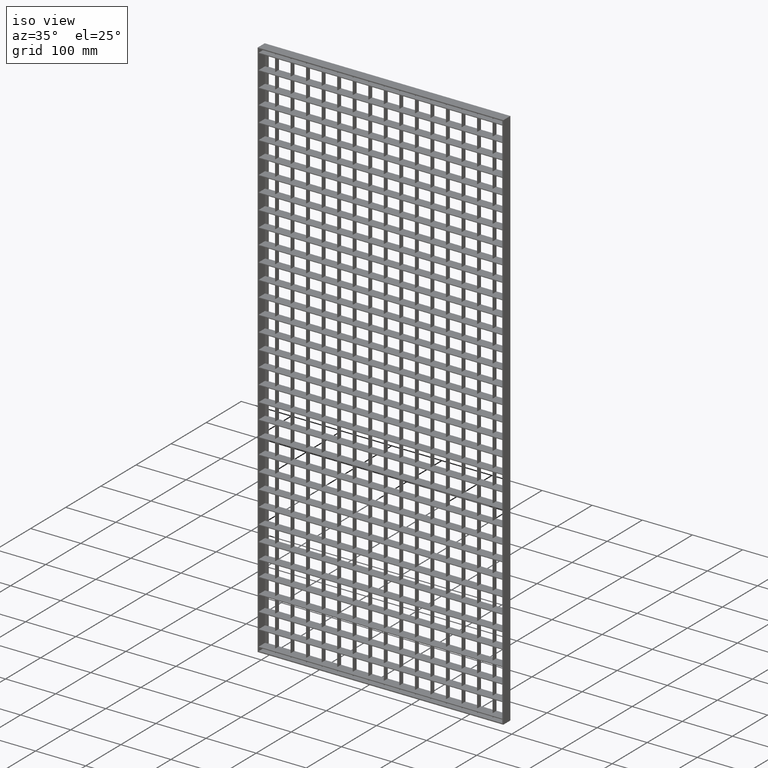
[diagram: clean part render]
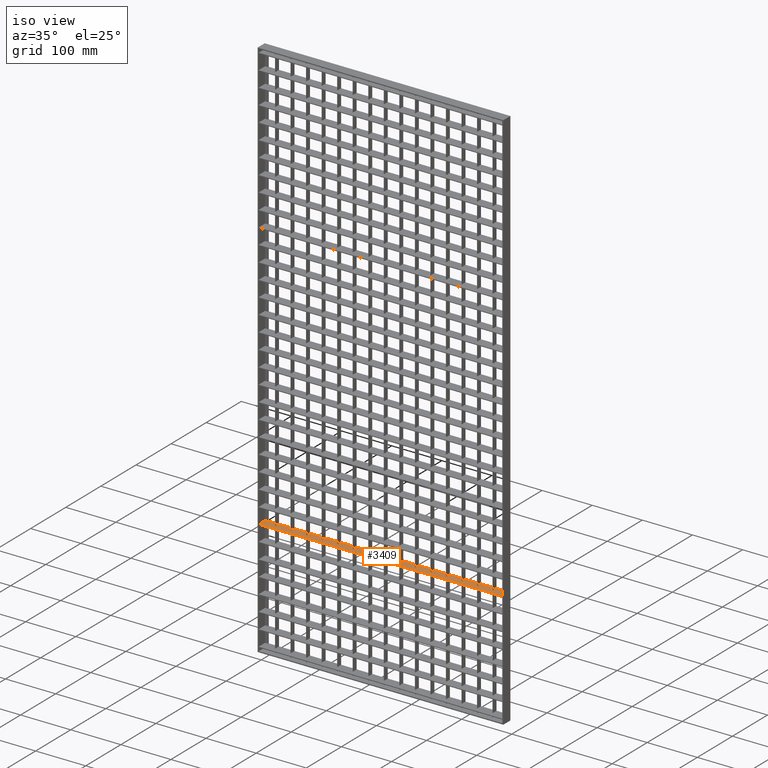
[diagram: same view with one face highlighted and labeled with its STEP entity id]
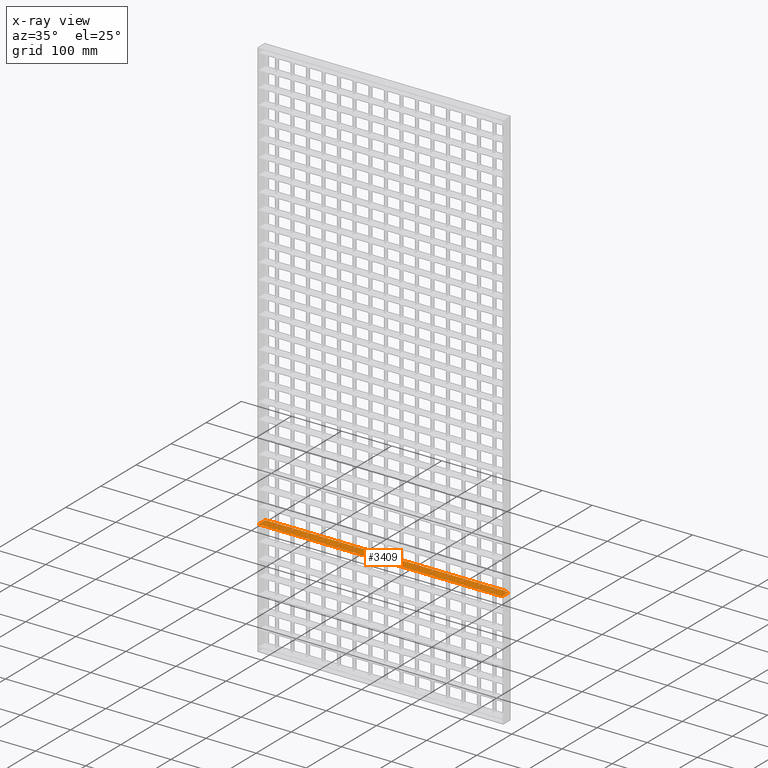
[diagram: x-ray of the same camera — body ghosted, the highlighted face saturated]
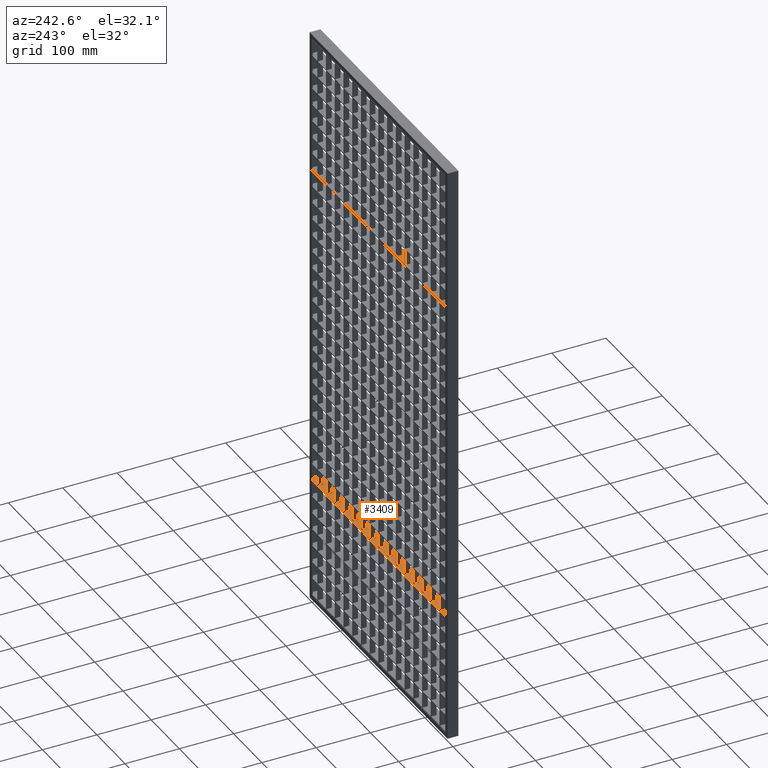
[diagram: same view with one face highlighted and labeled with its STEP entity id]
A machine part, iso view. The second image highlights one B-rep face of the part: STEP entity #3409.
The next image is the same camera in x-ray: the body ghosted, the highlighted face saturated — about 0% of this face is hidden behind the body in this view.
A second angle (auxiliary view) of the same face is appended — the face is thin or edge-on in the first view.
In plain terms, the highlighted planar face has unit normal (0, 0, -1).
Its self-contained STEP definition (entity closure, byte-faithful):
#53 = VERTEX_POINT ( 'NONE', #34075 ) ;
#95 = DIRECTION ( 'NONE',  ( 0.0000000000000000000, -1.000000000000000000, 0.0000000000000000000 ) ) ;
#165 = ORIENTED_EDGE ( 'NONE', *, *, #64502, .F. ) ;
#258 = VECTOR ( 'NONE', #60584, 1000.000000000000000 ) ;
#304 = CARTESIAN_POINT ( 'NONE',  ( 508.0561711201315800, 10.00000000000015500, -859.2500000000001100 ) ) ;
#658 = ORIENTED_EDGE ( 'NONE', *, *, #55660, .T. ) ;
#704 = VERTEX_POINT ( 'NONE', #54048 ) ;
#712 = ORIENTED_EDGE ( 'NONE', *, *, #35337, .T. ) ;
#1393 = EDGE_CURVE ( 'NONE', #50354, #68898, #55203, .T. ) ;
#1560 = LINE ( 'NONE', #74730, #47830 ) ;
#1565 = LINE ( 'NONE', #11392, #41068 ) ;
#1569 = ORIENTED_EDGE ( 'NONE', *, *, #33328, .F. ) ;
#1704 = VECTOR ( 'NONE', #13120, 1000.000000000000000 ) ;
#1992 = EDGE_CURVE ( 'NONE', #34790, #49113, #64695, .T. ) ;
#2011 = DIRECTION ( 'NONE',  ( -1.000000000000000000, -3.061616997868382600E-016, 0.0000000000000000000 ) ) ;
#2109 = DIRECTION ( 'NONE',  ( 0.0000000000000000000, 1.000000000000000000, 0.0000000000000000000 ) ) ;
#2141 = VERTEX_POINT ( 'NONE', #69376 ) ;
#2176 = ORIENTED_EDGE ( 'NONE', *, *, #46062, .T. ) ;
#2343 = ORIENTED_EDGE ( 'NONE', *, *, #62439, .T. ) ;
#2769 = LINE ( 'NONE', #54162, #62459 ) ;
#2953 = CARTESIAN_POINT ( 'NONE',  ( 508.0561711201315800, 10.00000000000015500, -859.2500000000001100 ) ) ;
#3409 = ADVANCED_FACE ( 'NONE', ( #34569 ), #61011, .F. ) ;
#3497 = DIRECTION ( 'NONE',  ( 0.0000000000000000000, 1.000000000000000000, 0.0000000000000000000 ) ) ;
#3759 = AXIS2_PLACEMENT_3D ( 'NONE', #36549, #29796, #72951 ) ;
#3761 = VECTOR ( 'NONE', #63153, 1000.000000000000000 ) ;
#4139 = CARTESIAN_POINT ( 'NONE',  ( 7.999999999999996400, 8.000000000000001800, -859.2500000000001100 ) ) ;
#4404 = LINE ( 'NONE', #53769, #18830 ) ;
#4461 = LINE ( 'NONE', #33083, #9219 ) ;
#4721 = LINE ( 'NONE', #12825, #30774 ) ;
#4946 = ORIENTED_EDGE ( 'NONE', *, *, #61403, .F. ) ;
#5110 = VERTEX_POINT ( 'NONE', #43535 ) ;
#5305 = ORIENTED_EDGE ( 'NONE', *, *, #22227, .T. ) ;
#5473 = VECTOR ( 'NONE', #56891, 1000.000000000000000 ) ;
#5560 = VECTOR ( 'NONE', #47603, 1000.000000000000000 ) ;
#5822 = EDGE_CURVE ( 'NONE', #68810, #65231, #60305, .T. ) ;
#6117 = VECTOR ( 'NONE', #20757, 1000.000000000000000 ) ;
#6132 = ORIENTED_EDGE ( 'NONE', *, *, #51162, .T. ) ;
#6389 = DIRECTION ( 'NONE',  ( -1.000000000000000000, -3.061616997868381200E-016, 0.0000000000000000000 ) ) ;
#6401 = CARTESIAN_POINT ( 'NONE',  ( 120.5000000000000000, 10.00000000000000400, -859.2500000000001100 ) ) ;
#6502 = ORIENTED_EDGE ( 'NONE', *, *, #49500, .F. ) ;
#6548 = CARTESIAN_POINT ( 'NONE',  ( 59.50000000000000000, 3.469446951953614200E-015, -859.2500000000001100 ) ) ;
#6588 = VERTEX_POINT ( 'NONE', #31672 ) ;
#6643 = EDGE_CURVE ( 'NONE', #17608, #15090, #19684, .T. ) ;
#7118 = LINE ( 'NONE', #23506, #28299 ) ;
#7778 = CARTESIAN_POINT ( 'NONE',  ( 183.5000000000000600, 10.00000000000005500, -859.2500000000001100 ) ) ;
#7893 = CARTESIAN_POINT ( 'NONE',  ( 508.0561711201315800, 10.00000000000015500, -859.2500000000001100 ) ) ;
#8051 = VERTEX_POINT ( 'NONE', #64328 ) ;
#8090 = VECTOR ( 'NONE', #74584, 1000.000000000000000 ) ;
#8153 = DIRECTION ( 'NONE',  ( -1.000000000000000000, -3.061616997868381200E-016, 0.0000000000000000000 ) ) ;
#8163 = ORIENTED_EDGE ( 'NONE', *, *, #6643, .F. ) ;
#8301 = EDGE_CURVE ( 'NONE', #20595, #77617, #22362, .T. ) ;
#8343 = CARTESIAN_POINT ( 'NONE',  ( 59.50000000000005000, 10.00000000000001800, -859.2500000000001100 ) ) ;
#8412 = ORIENTED_EDGE ( 'NONE', *, *, #60790, .F. ) ;
#8534 = CARTESIAN_POINT ( 'NONE',  ( 337.5000000000000000, 3.964497668408261800E-015, -859.2500000000001100 ) ) ;
#8674 = CARTESIAN_POINT ( 'NONE',  ( 151.4999999999999700, -9.999999999999847200, -859.2500000000001100 ) ) ;
#8775 = DIRECTION ( 'NONE',  ( -1.000000000000000000, -3.061616997868382600E-016, 0.0000000000000000000 ) ) ;
#8782 = EDGE_CURVE ( 'NONE', #71914, #73066, #14555, .T. ) ;
#8949 = CARTESIAN_POINT ( 'NONE',  ( 368.5000000000000600, -9.999999999999847200, -859.2500000000001100 ) ) ;
#9219 = VECTOR ( 'NONE', #15015, 1000.000000000000000 ) ;
#9446 = VECTOR ( 'NONE', #77853, 1000.000000000000000 ) ;
#9472 = VECTOR ( 'NONE', #52279, 1000.000000000000000 ) ;
#9516 = VERTEX_POINT ( 'NONE', #78986 ) ;
#9676 = VECTOR ( 'NONE', #16080, 1000.000000000000000 ) ;
#10096 = ORIENTED_EDGE ( 'NONE', *, *, #48770, .T. ) ;
#10531 = ORIENTED_EDGE ( 'NONE', *, *, #8782, .F. ) ;
#10723 = VERTEX_POINT ( 'NONE', #72383 ) ;
#10766 = EDGE_CURVE ( 'NONE', #68898, #34790, #4404, .T. ) ;
#10959 = LINE ( 'NONE', #55575, #74666 ) ;
#11232 = EDGE_CURVE ( 'NONE', #44311, #704, #12020, .T. ) ;
#11277 = LINE ( 'NONE', #44242, #5473 ) ;
#11392 = CARTESIAN_POINT ( 'NONE',  ( 508.0561711201315800, 10.00000000000015500, -859.2500000000001100 ) ) ;
#11398 = LINE ( 'NONE', #33825, #42257 ) ;
#11879 = EDGE_CURVE ( 'NONE', #69246, #39146, #79372, .T. ) ;
#12020 = LINE ( 'NONE', #4139, #75696 ) ;
#12072 = LINE ( 'NONE', #43856, #30395 ) ;
#12230 = DIRECTION ( 'NONE',  ( -1.000000000000000000, -3.061616997868381200E-016, 0.0000000000000000000 ) ) ;
#12310 = CARTESIAN_POINT ( 'NONE',  ( 121.5000000000000000, 10.00000000000003700, -859.2500000000001100 ) ) ;
#12825 = CARTESIAN_POINT ( 'NONE',  ( 508.0561711201315800, 10.00000000000015500, -859.2500000000001100 ) ) ;
#12920 = CARTESIAN_POINT ( 'NONE',  ( 182.5000000000000000, -9.999999999999847200, -859.2500000000001100 ) ) ;
#13025 = EDGE_CURVE ( 'NONE', #76024, #21222, #30893, .T. ) ;
#13060 = CARTESIAN_POINT ( 'NONE',  ( 244.5000000000000000, 10.00000000000000400, -859.2500000000001100 ) ) ;
#13120 = DIRECTION ( 'NONE',  ( -1.000000000000000000, -3.061616997868382600E-016, 0.0000000000000000000 ) ) ;
#13179 = DIRECTION ( 'NONE',  ( 0.0000000000000000000, 1.000000000000000000, 0.0000000000000000000 ) ) ;
#13334 = DIRECTION ( 'NONE',  ( -1.000000000000000000, -3.061616997868381200E-016, 0.0000000000000000000 ) ) ;
#13363 = ORIENTED_EDGE ( 'NONE', *, *, #53779, .T. ) ;
#13383 = CARTESIAN_POINT ( 'NONE',  ( 89.50000000000002800, -9.999999999999847200, -859.2500000000001100 ) ) ;
#13512 = DIRECTION ( 'NONE',  ( 0.0000000000000000000, 1.000000000000000000, 0.0000000000000000000 ) ) ;
#13646 = CARTESIAN_POINT ( 'NONE',  ( 508.0561711201315800, 10.00000000000015500, -859.2500000000001100 ) ) ;
#13694 = DIRECTION ( 'NONE',  ( 0.0000000000000000000, -1.000000000000000000, 0.0000000000000000000 ) ) ;
#14032 = CARTESIAN_POINT ( 'NONE',  ( 89.49999999999997200, 3.693115367827176900E-015, -859.2500000000001100 ) ) ;
#14204 = VECTOR ( 'NONE', #69715, 1000.000000000000000 ) ;
#14314 = CARTESIAN_POINT ( 'NONE',  ( 2.000000000000003600, -10.00000000000000000, -859.2500000000001100 ) ) ;
#14436 = CARTESIAN_POINT ( 'NONE',  ( 462.5000000000000000, 10.00000000000014000, -859.2500000000001100 ) ) ;
#14555 = LINE ( 'NONE', #29733, #47323 ) ;
#14843 = VERTEX_POINT ( 'NONE', #58090 ) ;
#14961 = CARTESIAN_POINT ( 'NONE',  ( 482.0000000000002800, 10.00000000000000200, -859.2500000000001100 ) ) ;
#15015 = DIRECTION ( 'NONE',  ( -1.000000000000000000, -3.061616997868382600E-016, 0.0000000000000000000 ) ) ;
#15090 = VERTEX_POINT ( 'NONE', #47816 ) ;
#15233 = LINE ( 'NONE', #50476, #3761 ) ;
#15250 = ORIENTED_EDGE ( 'NONE', *, *, #44752, .T. ) ;
#15295 = ORIENTED_EDGE ( 'NONE', *, *, #67445, .T. ) ;
#15549 = CARTESIAN_POINT ( 'NONE',  ( 245.5000000000000000, 3.469446951953614200E-015, -859.2500000000001100 ) ) ;
#15619 = EDGE_CURVE ( 'NONE', #21222, #25519, #49666, .T. ) ;
#16080 = DIRECTION ( 'NONE',  ( -1.000000000000000000, -3.061616997868382600E-016, 0.0000000000000000000 ) ) ;
#16192 = CARTESIAN_POINT ( 'NONE',  ( 461.5000000000000000, 10.00000000000014000, -859.2500000000001100 ) ) ;
#16209 = EDGE_CURVE ( 'NONE', #59852, #68161, #39883, .T. ) ;
#16625 = LINE ( 'NONE', #36654, #258 ) ;
#16655 = CARTESIAN_POINT ( 'NONE',  ( 152.5000000000000300, 10.00000000000004600, -859.2500000000001100 ) ) ;
#16892 = DIRECTION ( 'NONE',  ( -1.000000000000000000, -3.061616997868381200E-016, 0.0000000000000000000 ) ) ;
#16953 = VECTOR ( 'NONE', #63803, 1000.000000000000000 ) ;
#16977 = VERTEX_POINT ( 'NONE', #52047 ) ;
#17174 = ORIENTED_EDGE ( 'NONE', *, *, #62572, .F. ) ;
#17485 = EDGE_CURVE ( 'NONE', #54440, #73592, #66610, .T. ) ;
#17608 = VERTEX_POINT ( 'NONE', #8534 ) ;
#17741 = EDGE_CURVE ( 'NONE', #6588, #21600, #25087, .T. ) ;
#17881 = ORIENTED_EDGE ( 'NONE', *, *, #51138, .T. ) ;
#17952 = CARTESIAN_POINT ( 'NONE',  ( 183.5000000000000000, -9.999999999999847200, -859.2500000000001100 ) ) ;
#18058 = LINE ( 'NONE', #13646, #1704 ) ;
#18277 = VECTOR ( 'NONE', #27236, 1000.000000000000000 ) ;
#18744 = CARTESIAN_POINT ( 'NONE',  ( 508.0561711201315800, -5.898059818321144100E-014, -859.2500000000001100 ) ) ;
#18790 = DIRECTION ( 'NONE',  ( -1.000000000000000000, -3.061616997868382600E-016, 0.0000000000000000000 ) ) ;
#18830 = VECTOR ( 'NONE', #72653, 1000.000000000000000 ) ;
#19270 = LINE ( 'NONE', #79162, #37647 ) ;
#19423 = LINE ( 'NONE', #304, #66693 ) ;
#19532 = DIRECTION ( 'NONE',  ( 0.0000000000000000000, 1.000000000000000000, 0.0000000000000000000 ) ) ;
#19684 = LINE ( 'NONE', #38940, #34195 ) ;
#19979 = ORIENTED_EDGE ( 'NONE', *, *, #64501, .F. ) ;
#20222 = ORIENTED_EDGE ( 'NONE', *, *, #76240, .T. ) ;
#20272 = CARTESIAN_POINT ( 'NONE',  ( 7.999999999999996400, 8.000000000000001800, -859.2500000000001100 ) ) ;
#20403 = CARTESIAN_POINT ( 'NONE',  ( 399.4999999999999400, 10.00000000000012100, -859.2500000000001100 ) ) ;
#20595 = VERTEX_POINT ( 'NONE', #7778 ) ;
#20660 = DIRECTION ( 'NONE',  ( 0.0000000000000000000, -1.000000000000000000, 0.0000000000000000000 ) ) ;
#20726 = VERTEX_POINT ( 'NONE', #58909 ) ;
#20731 = VECTOR ( 'NONE', #19532, 1000.000000000000000 ) ;
#20757 = DIRECTION ( 'NONE',  ( 0.0000000000000000000, 1.000000000000000000, 0.0000000000000000000 ) ) ;
#20795 = EDGE_CURVE ( 'NONE', #5110, #65203, #49680, .T. ) ;
#20826 = EDGE_LOOP ( 'NONE', ( #34952, #36929, #4946, #26963, #8412, #1569, #30200, #17881, #26873, #59739, #35435, #33405, #21493, #39261, #44643, #5305, #50850, #8163, #64251, #57111, #44116, #73508, #17174, #55319, #10531, #19979, #25063, #60534, #56202, #62663, #79000, #658, #15295, #20222, #54316, #77812, #55251, #64181, #54309, #6132, #2343, #712, #2176, #68616, #54297, #71567, #24852, #66438, #42676, #75386, #46228, #39455, #47979, #23309, #13363, #15250, #47350, #61697, #21560, #41652, #60448, #64488, #165, #53572, #10096, #54113, #6502, #32204 ) ) ;
#21023 = CARTESIAN_POINT ( 'NONE',  ( 2.000000000000003600, 8.000000000000001800, -859.2500000000001100 ) ) ;
#21120 = LINE ( 'NONE', #31649, #63527 ) ;
#21166 = VERTEX_POINT ( 'NONE', #13060 ) ;
#21204 = DIRECTION ( 'NONE',  ( -1.000000000000000000, -3.061616997868382600E-016, 0.0000000000000000000 ) ) ;
#21222 = VERTEX_POINT ( 'NONE', #65236 ) ;
#21369 = LINE ( 'NONE', #78504, #77270 ) ;
#21475 = LINE ( 'NONE', #14314, #6117 ) ;
#21493 = ORIENTED_EDGE ( 'NONE', *, *, #38061, .F. ) ;
#21498 = CARTESIAN_POINT ( 'NONE',  ( 369.5000000000000600, 2.521952918628904300E-015, -859.2500000000001100 ) ) ;
#21555 = VERTEX_POINT ( 'NONE', #53106 ) ;
#21560 = ORIENTED_EDGE ( 'NONE', *, *, #77550, .T. ) ;
#21600 = VERTEX_POINT ( 'NONE', #40730 ) ;
#21877 = CARTESIAN_POINT ( 'NONE',  ( 2.000000000000003600, 8.000000000000001800, -859.2500000000001100 ) ) ;
#22180 = VERTEX_POINT ( 'NONE', #54244 ) ;
#22227 = EDGE_CURVE ( 'NONE', #31029, #28390, #1565, .T. ) ;
#22362 = LINE ( 'NONE', #17952, #32031 ) ;
#22488 = CARTESIAN_POINT ( 'NONE',  ( 27.49999999999996800, -9.999999999999847200, -859.2500000000001100 ) ) ;
#22536 = CARTESIAN_POINT ( 'NONE',  ( 508.0561711201315800, -2.949029909160572100E-014, -859.2500000000001100 ) ) ;
#22767 = DIRECTION ( 'NONE',  ( 1.000000000000000000, 0.0000000000000000000, 0.0000000000000000000 ) ) ;
#22771 = LINE ( 'NONE', #49147, #44031 ) ;
#22850 = VERTEX_POINT ( 'NONE', #29925 ) ;
#22903 = EDGE_CURVE ( 'NONE', #49943, #8051, #41823, .T. ) ;
#22989 = LINE ( 'NONE', #70069, #9472 ) ;
#23309 = ORIENTED_EDGE ( 'NONE', *, *, #64981, .T. ) ;
#23506 = CARTESIAN_POINT ( 'NONE',  ( 245.5000000000000000, -9.999999999999847200, -859.2500000000001100 ) ) ;
#23794 = DIRECTION ( 'NONE',  ( 0.0000000000000000000, 1.000000000000000000, 0.0000000000000000000 ) ) ;
#23880 = CARTESIAN_POINT ( 'NONE',  ( 275.4999999999999400, 10.00000000000008300, -859.2500000000001100 ) ) ;
#24458 = LINE ( 'NONE', #18744, #8090 ) ;
#24852 = ORIENTED_EDGE ( 'NONE', *, *, #49271, .T. ) ;
#25063 = ORIENTED_EDGE ( 'NONE', *, *, #17485, .F. ) ;
#25087 = LINE ( 'NONE', #65909, #75249 ) ;
#25519 = VERTEX_POINT ( 'NONE', #40138 ) ;
#25692 = DIRECTION ( 'NONE',  ( 0.0000000000000000000, 1.000000000000000000, 0.0000000000000000000 ) ) ;
#25770 = DIRECTION ( 'NONE',  ( -1.000000000000000000, -3.061616997868382600E-016, 0.0000000000000000000 ) ) ;
#25779 = VERTEX_POINT ( 'NONE', #30378 ) ;
#25828 = VERTEX_POINT ( 'NONE', #68639 ) ;
#25907 = CARTESIAN_POINT ( 'NONE',  ( 400.4999999999999400, 10.00000000000012100, -859.2500000000001100 ) ) ;
#26063 = CARTESIAN_POINT ( 'NONE',  ( 400.4999999999999400, 3.439281081097793000E-015, -859.2500000000001100 ) ) ;
#26076 = CARTESIAN_POINT ( 'NONE',  ( 213.5000000000000000, 10.00000000000000400, -859.2500000000001100 ) ) ;
#26439 = DIRECTION ( 'NONE',  ( 0.0000000000000000000, 1.000000000000000000, 0.0000000000000000000 ) ) ;
#26794 = EDGE_CURVE ( 'NONE', #14843, #68810, #28674, .T. ) ;
#26873 = ORIENTED_EDGE ( 'NONE', *, *, #58345, .F. ) ;
#26963 = ORIENTED_EDGE ( 'NONE', *, *, #33423, .T. ) ;
#27035 = EDGE_CURVE ( 'NONE', #77617, #49943, #65047, .T. ) ;
#27236 = DIRECTION ( 'NONE',  ( 0.0000000000000000000, -1.000000000000000000, 0.0000000000000000000 ) ) ;
#27552 = VERTEX_POINT ( 'NONE', #36893 ) ;
#27672 = CARTESIAN_POINT ( 'NONE',  ( 337.5000000000000000, -9.999999999999847200, -859.2500000000001100 ) ) ;
#27740 = VECTOR ( 'NONE', #66131, 1000.000000000000000 ) ;
#27998 = CARTESIAN_POINT ( 'NONE',  ( 28.49999999999997200, 3.469446951953614200E-015, -859.2500000000001100 ) ) ;
#28299 = VECTOR ( 'NONE', #59887, 1000.000000000000000 ) ;
#28390 = VERTEX_POINT ( 'NONE', #38625 ) ;
#28484 = LINE ( 'NONE', #74595, #20731 ) ;
#28490 = CARTESIAN_POINT ( 'NONE',  ( 508.0561711201315800, -1.040834085586084300E-014, -859.2500000000001100 ) ) ;
#28674 = LINE ( 'NONE', #34711, #5560 ) ;
#28734 = EDGE_CURVE ( 'NONE', #50375, #44311, #69888, .T. ) ;
#29733 = CARTESIAN_POINT ( 'NONE',  ( 276.4999999999999400, -9.999999999999847200, -859.2500000000001100 ) ) ;
#29796 = DIRECTION ( 'NONE',  ( 0.0000000000000000000, 0.0000000000000000000, -1.000000000000000000 ) ) ;
#29925 = CARTESIAN_POINT ( 'NONE',  ( 369.5000000000000600, 10.00000000000011400, -859.2500000000001100 ) ) ;
#30011 = VERTEX_POINT ( 'NONE', #60214 ) ;
#30195 = VECTOR ( 'NONE', #31576, 1000.000000000000000 ) ;
#30200 = ORIENTED_EDGE ( 'NONE', *, *, #35688, .F. ) ;
#30378 = CARTESIAN_POINT ( 'NONE',  ( 151.4999999999999700, 3.593182518866256300E-015, -859.2500000000001100 ) ) ;
#30395 = VECTOR ( 'NONE', #18790, 1000.000000000000000 ) ;
#30774 = VECTOR ( 'NONE', #69433, 1000.000000000000000 ) ;
#30836 = CARTESIAN_POINT ( 'NONE',  ( 306.5000000000000000, 3.964497668408261800E-015, -859.2500000000001100 ) ) ;
#30893 = LINE ( 'NONE', #71357, #9676 ) ;
#30986 = LINE ( 'NONE', #27672, #62808 ) ;
#31029 = VERTEX_POINT ( 'NONE', #56472 ) ;
#31576 = DIRECTION ( 'NONE',  ( 0.0000000000000000000, -1.000000000000000000, 0.0000000000000000000 ) ) ;
#31649 = CARTESIAN_POINT ( 'NONE',  ( 488.0000000000000000, -9.999999999999847200, -859.2500000000001100 ) ) ;
#31672 = CARTESIAN_POINT ( 'NONE',  ( 482.0000000000000600, 8.000000000000001800, -859.2500000000001100 ) ) ;
#31681 = EDGE_CURVE ( 'NONE', #10723, #71137, #77447, .T. ) ;
#31819 = DIRECTION ( 'NONE',  ( 0.0000000000000000000, -1.000000000000000000, 0.0000000000000000000 ) ) ;
#32031 = VECTOR ( 'NONE', #79434, 1000.000000000000000 ) ;
#32190 = VERTEX_POINT ( 'NONE', #63594 ) ;
#32204 = ORIENTED_EDGE ( 'NONE', *, *, #66988, .T. ) ;
#32209 = CARTESIAN_POINT ( 'NONE',  ( 276.4999999999999400, 10.00000000000008300, -859.2500000000001100 ) ) ;
#32262 = CARTESIAN_POINT ( 'NONE',  ( 275.4999999999999400, -9.999999999999847200, -859.2500000000001100 ) ) ;
#32355 = LINE ( 'NONE', #58948, #79608 ) ;
#32509 = CARTESIAN_POINT ( 'NONE',  ( 214.5000000000000300, -9.999999999999847200, -859.2500000000001100 ) ) ;
#32533 = VERTEX_POINT ( 'NONE', #16655 ) ;
#32872 = CARTESIAN_POINT ( 'NONE',  ( 431.5000000000000000, 2.621885767589837500E-015, -859.2500000000001100 ) ) ;
#33021 = DIRECTION ( 'NONE',  ( 0.0000000000000000000, 1.000000000000000000, 0.0000000000000000000 ) ) ;
#33022 = VECTOR ( 'NONE', #2011, 1000.000000000000000 ) ;
#33040 = VECTOR ( 'NONE', #48603, 1000.000000000000000 ) ;
#33083 = CARTESIAN_POINT ( 'NONE',  ( 508.0561711201315800, 10.00000000000015500, -859.2500000000001100 ) ) ;
#33328 = EDGE_CURVE ( 'NONE', #48663, #39373, #41363, .T. ) ;
#33338 = VECTOR ( 'NONE', #6389, 1000.000000000000000 ) ;
#33361 = LINE ( 'NONE', #2953, #16953 ) ;
#33405 = ORIENTED_EDGE ( 'NONE', *, *, #68655, .T. ) ;
#33413 = DIRECTION ( 'NONE',  ( -1.000000000000000000, -3.061616997868382600E-016, 0.0000000000000000000 ) ) ;
#33423 = EDGE_CURVE ( 'NONE', #56559, #62823, #4721, .T. ) ;
#33825 = CARTESIAN_POINT ( 'NONE',  ( 369.5000000000000600, -9.999999999999847200, -859.2500000000001100 ) ) ;
#33952 = LINE ( 'NONE', #75862, #33022 ) ;
#34051 = EDGE_CURVE ( 'NONE', #69285, #5110, #15233, .T. ) ;
#34075 = CARTESIAN_POINT ( 'NONE',  ( 120.5000000000000000, 2.775787205358319000E-015, -859.2500000000001100 ) ) ;
#34117 = VERTEX_POINT ( 'NONE', #64199 ) ;
#34195 = VECTOR ( 'NONE', #56965, 1000.000000000000000 ) ;
#34561 = LINE ( 'NONE', #7893, #66418 ) ;
#34569 = FACE_OUTER_BOUND ( 'NONE', #20826, .T. ) ;
#34711 = CARTESIAN_POINT ( 'NONE',  ( 28.49999999999997200, -9.999999999999847200, -859.2500000000001100 ) ) ;
#34790 = VERTEX_POINT ( 'NONE', #8343 ) ;
#34903 = CARTESIAN_POINT ( 'NONE',  ( 183.5000000000000000, 3.469446951953614200E-015, -859.2500000000001100 ) ) ;
#34952 = ORIENTED_EDGE ( 'NONE', *, *, #45359, .F. ) ;
#35337 = EDGE_CURVE ( 'NONE', #16977, #25779, #65210, .T. ) ;
#35435 = ORIENTED_EDGE ( 'NONE', *, *, #34051, .F. ) ;
#35522 = VECTOR ( 'NONE', #13512, 1000.000000000000000 ) ;
#35688 = EDGE_CURVE ( 'NONE', #20726, #48663, #51929, .T. ) ;
#35697 = DIRECTION ( 'NONE',  ( 0.0000000000000000000, 1.000000000000000000, 0.0000000000000000000 ) ) ;
#36002 = LINE ( 'NONE', #43449, #30195 ) ;
#36162 = DIRECTION ( 'NONE',  ( 0.0000000000000000000, 1.000000000000000000, 0.0000000000000000000 ) ) ;
#36273 = LINE ( 'NONE', #70364, #71009 ) ;
#36549 = CARTESIAN_POINT ( 'NONE',  ( 508.0561711201315800, -9.999999999999847200, -859.2500000000001100 ) ) ;
#36654 = CARTESIAN_POINT ( 'NONE',  ( 508.0561711201315800, 1.405126015541213700E-013, -859.2500000000001100 ) ) ;
#36893 = CARTESIAN_POINT ( 'NONE',  ( 151.5000000000000000, 10.00000000000000400, -859.2500000000001100 ) ) ;
#36929 = ORIENTED_EDGE ( 'NONE', *, *, #50090, .F. ) ;
#37082 = VECTOR ( 'NONE', #58868, 1000.000000000000000 ) ;
#37647 = VECTOR ( 'NONE', #60769, 1000.000000000000000 ) ;
#37950 = VERTEX_POINT ( 'NONE', #14961 ) ;
#38061 = EDGE_CURVE ( 'NONE', #71137, #22850, #11398, .T. ) ;
#38094 = CARTESIAN_POINT ( 'NONE',  ( 307.5000000000000000, 2.422020069668008500E-015, -859.2500000000001100 ) ) ;
#38554 = LINE ( 'NONE', #8949, #18277 ) ;
#38585 = DIRECTION ( 'NONE',  ( 1.000000000000000000, -3.061616997868381200E-016, 0.0000000000000000000 ) ) ;
#38625 = CARTESIAN_POINT ( 'NONE',  ( 338.5000000000000000, 10.00000000000010300, -859.2500000000001100 ) ) ;
#38840 = VECTOR ( 'NONE', #25692, 1000.000000000000000 ) ;
#38940 = CARTESIAN_POINT ( 'NONE',  ( 508.0561711201315800, -4.857225732735059900E-014, -859.2500000000001100 ) ) ;
#39044 = VECTOR ( 'NONE', #16892, 1000.000000000000000 ) ;
#39146 = VERTEX_POINT ( 'NONE', #26076 ) ;
#39160 = DIRECTION ( 'NONE',  ( 1.000000000000000000, -3.061616997868381200E-016, 0.0000000000000000000 ) ) ;
#39261 = ORIENTED_EDGE ( 'NONE', *, *, #31681, .F. ) ;
#39373 = VERTEX_POINT ( 'NONE', #32872 ) ;
#39396 = LINE ( 'NONE', #69336, #35522 ) ;
#39442 = CARTESIAN_POINT ( 'NONE',  ( 462.5000000000000000, 3.539213930058689100E-015, -859.2500000000001100 ) ) ;
#39444 = CARTESIAN_POINT ( 'NONE',  ( 508.0561711201315800, -3.989863994746656300E-014, -859.2500000000001100 ) ) ;
#39455 = ORIENTED_EDGE ( 'NONE', *, *, #10766, .T. ) ;
#39883 = LINE ( 'NONE', #74826, #38840 ) ;
#39993 = CARTESIAN_POINT ( 'NONE',  ( 307.5000000000000000, 10.00000000000009400, -859.2500000000001100 ) ) ;
#40042 = DIRECTION ( 'NONE',  ( 0.0000000000000000000, 1.000000000000000000, 0.0000000000000000000 ) ) ;
#40097 = EDGE_CURVE ( 'NONE', #9516, #34117, #61138, .T. ) ;
#40138 = CARTESIAN_POINT ( 'NONE',  ( 90.50000000000002800, 3.469446951953614200E-015, -859.2500000000001100 ) ) ;
#40464 = CARTESIAN_POINT ( 'NONE',  ( 461.5000000000000000, 3.964497668408261800E-015, -859.2500000000001100 ) ) ;
#40730 = CARTESIAN_POINT ( 'NONE',  ( 487.9999999999997700, 8.000000000000001800, -859.2500000000001100 ) ) ;
#41068 = VECTOR ( 'NONE', #67448, 1000.000000000000000 ) ;
#41363 = LINE ( 'NONE', #67038, #46127 ) ;
#41428 = CARTESIAN_POINT ( 'NONE',  ( 508.0561711201315800, 1.318389841742373400E-013, -859.2500000000001100 ) ) ;
#41652 = ORIENTED_EDGE ( 'NONE', *, *, #65817, .T. ) ;
#41823 = LINE ( 'NONE', #12920, #49580 ) ;
#42117 = CARTESIAN_POINT ( 'NONE',  ( 244.5000000000000000, -9.999999999999847200, -859.2500000000001100 ) ) ;
#42246 = LINE ( 'NONE', #28490, #9446 ) ;
#42257 = VECTOR ( 'NONE', #40042, 1000.000000000000000 ) ;
#42413 = CARTESIAN_POINT ( 'NONE',  ( 213.5000000000000300, -9.999999999999847200, -859.2500000000001100 ) ) ;
#42676 = ORIENTED_EDGE ( 'NONE', *, *, #15619, .T. ) ;
#43020 = VECTOR ( 'NONE', #63773, 1000.000000000000000 ) ;
#43449 = CARTESIAN_POINT ( 'NONE',  ( 306.5000000000000000, -9.999999999999847200, -859.2500000000001100 ) ) ;
#43535 = CARTESIAN_POINT ( 'NONE',  ( 399.4999999999999400, 3.964497668408261800E-015, -859.2500000000001100 ) ) ;
#43808 = VERTEX_POINT ( 'NONE', #15549 ) ;
#43843 = LINE ( 'NONE', #22488, #74747 ) ;
#43856 = CARTESIAN_POINT ( 'NONE',  ( 508.0561711201315800, 10.00000000000015500, -859.2500000000001100 ) ) ;
#43999 = DIRECTION ( 'NONE',  ( 0.0000000000000000000, -1.000000000000000000, 0.0000000000000000000 ) ) ;
#44031 = VECTOR ( 'NONE', #12230, 1000.000000000000000 ) ;
#44116 = ORIENTED_EDGE ( 'NONE', *, *, #16209, .F. ) ;
#44242 = CARTESIAN_POINT ( 'NONE',  ( 431.5000000000000000, -9.999999999999847200, -859.2500000000001100 ) ) ;
#44281 = VERTEX_POINT ( 'NONE', #56171 ) ;
#44311 = VERTEX_POINT ( 'NONE', #20272 ) ;
#44332 = CARTESIAN_POINT ( 'NONE',  ( 462.5000000000000000, -9.999999999999847200, -859.2500000000001100 ) ) ;
#44643 = ORIENTED_EDGE ( 'NONE', *, *, #56449, .F. ) ;
#44666 = EDGE_CURVE ( 'NONE', #44281, #73066, #18058, .T. ) ;
#44752 = EDGE_CURVE ( 'NONE', #46147, #14843, #78870, .T. ) ;
#44895 = LINE ( 'NONE', #44332, #69052 ) ;
#45038 = CARTESIAN_POINT ( 'NONE',  ( 508.0561711201315800, 1.509209424099822200E-013, -859.2500000000001100 ) ) ;
#45359 = EDGE_CURVE ( 'NONE', #51969, #74204, #44895, .T. ) ;
#45813 = LINE ( 'NONE', #75731, #55502 ) ;
#46044 = VECTOR ( 'NONE', #25770, 1000.000000000000000 ) ;
#46062 = EDGE_CURVE ( 'NONE', #25779, #27552, #50603, .T. ) ;
#46127 = VECTOR ( 'NONE', #49225, 1000.000000000000000 ) ;
#46147 = VERTEX_POINT ( 'NONE', #76618 ) ;
#46228 = ORIENTED_EDGE ( 'NONE', *, *, #1393, .T. ) ;
#46263 = LINE ( 'NONE', #69439, #56862 ) ;
#46292 = VERTEX_POINT ( 'NONE', #40464 ) ;
#46462 = CARTESIAN_POINT ( 'NONE',  ( 508.0561711201315800, -9.999999999999847200, -859.2500000000001100 ) ) ;
#46512 = VECTOR ( 'NONE', #2109, 1000.000000000000000 ) ;
#46799 = DIRECTION ( 'NONE',  ( 0.0000000000000000000, -1.000000000000000000, 0.0000000000000000000 ) ) ;
#47323 = VECTOR ( 'NONE', #23794, 1000.000000000000000 ) ;
#47350 = ORIENTED_EDGE ( 'NONE', *, *, #26794, .T. ) ;
#47536 = VECTOR ( 'NONE', #38585, 1000.000000000000000 ) ;
#47603 = DIRECTION ( 'NONE',  ( 0.0000000000000000000, -1.000000000000000000, 0.0000000000000000000 ) ) ;
#47816 = CARTESIAN_POINT ( 'NONE',  ( 338.5000000000000000, 3.339348232136859800E-015, -859.2500000000001100 ) ) ;
#47830 = VECTOR ( 'NONE', #31819, 1000.000000000000000 ) ;
#47979 = ORIENTED_EDGE ( 'NONE', *, *, #1992, .T. ) ;
#48166 = EDGE_CURVE ( 'NONE', #2141, #53, #19270, .T. ) ;
#48603 = DIRECTION ( 'NONE',  ( 0.0000000000000000000, 1.000000000000000000, 0.0000000000000000000 ) ) ;
#48663 = VERTEX_POINT ( 'NONE', #51321 ) ;
#48770 = EDGE_CURVE ( 'NONE', #9516, #21600, #21120, .T. ) ;
#49113 = VERTEX_POINT ( 'NONE', #6548 ) ;
#49147 = CARTESIAN_POINT ( 'NONE',  ( 508.0561711201315800, 8.326672684688674100E-014, -859.2500000000001100 ) ) ;
#49225 = DIRECTION ( 'NONE',  ( 1.000000000000000000, -3.061616997868381200E-016, 0.0000000000000000000 ) ) ;
#49252 = CARTESIAN_POINT ( 'NONE',  ( 90.50000000000002800, -9.999999999999847200, -859.2500000000001100 ) ) ;
#49271 = EDGE_CURVE ( 'NONE', #53, #76024, #39396, .T. ) ;
#49500 = EDGE_CURVE ( 'NONE', #37950, #6588, #2769, .T. ) ;
#49580 = VECTOR ( 'NONE', #13179, 1000.000000000000000 ) ;
#49666 = LINE ( 'NONE', #49252, #50500 ) ;
#49680 = LINE ( 'NONE', #22536, #52552 ) ;
#49943 = VERTEX_POINT ( 'NONE', #75463 ) ;
#50090 = EDGE_CURVE ( 'NONE', #46292, #51969, #42246, .T. ) ;
#50253 = VECTOR ( 'NONE', #43999, 1000.000000000000000 ) ;
#50354 = VERTEX_POINT ( 'NONE', #14032 ) ;
#50375 = VERTEX_POINT ( 'NONE', #21023 ) ;
#50476 = CARTESIAN_POINT ( 'NONE',  ( 399.4999999999999400, -9.999999999999847200, -859.2500000000001100 ) ) ;
#50500 = VECTOR ( 'NONE', #20660, 1000.000000000000000 ) ;
#50551 = CARTESIAN_POINT ( 'NONE',  ( 508.0561711201315800, 1.127570259384924600E-013, -859.2500000000001100 ) ) ;
#50603 = LINE ( 'NONE', #8674, #76715 ) ;
#50669 = VECTOR ( 'NONE', #21204, 1000.000000000000000 ) ;
#50733 = LINE ( 'NONE', #76225, #43020 ) ;
#50850 = ORIENTED_EDGE ( 'NONE', *, *, #51258, .F. ) ;
#50856 = LINE ( 'NONE', #32509, #14204 ) ;
#50888 = CARTESIAN_POINT ( 'NONE',  ( 213.4999999999999700, 3.493249669905335300E-015, -859.2500000000001100 ) ) ;
#51138 = EDGE_CURVE ( 'NONE', #20726, #58110, #4461, .T. ) ;
#51140 = EDGE_CURVE ( 'NONE', #39146, #20595, #33361, .T. ) ;
#51162 = EDGE_CURVE ( 'NONE', #8051, #32533, #67077, .T. ) ;
#51258 = EDGE_CURVE ( 'NONE', #15090, #28390, #28484, .T. ) ;
#51321 = CARTESIAN_POINT ( 'NONE',  ( 430.5000000000000000, 3.964497668408261800E-015, -859.2500000000001100 ) ) ;
#51929 = LINE ( 'NONE', #71837, #27740 ) ;
#51969 = VERTEX_POINT ( 'NONE', #39442 ) ;
#51973 = CARTESIAN_POINT ( 'NONE',  ( 508.0561711201315800, 10.00000000000015500, -859.2500000000001100 ) ) ;
#52047 = CARTESIAN_POINT ( 'NONE',  ( 152.4999999999999700, 3.469446951953614200E-015, -859.2500000000001100 ) ) ;
#52279 = DIRECTION ( 'NONE',  ( -1.000000000000000000, -3.061616997868382600E-016, 0.0000000000000000000 ) ) ;
#52368 = LINE ( 'NONE', #56624, #47536 ) ;
#52552 = VECTOR ( 'NONE', #71894, 1000.000000000000000 ) ;
#52710 = VERTEX_POINT ( 'NONE', #65193 ) ;
#53106 = CARTESIAN_POINT ( 'NONE',  ( 214.5000000000000300, 10.00000000000006400, -859.2500000000001100 ) ) ;
#53138 = DIRECTION ( 'NONE',  ( 0.0000000000000000000, 1.000000000000000000, 0.0000000000000000000 ) ) ;
#53572 = ORIENTED_EDGE ( 'NONE', *, *, #40097, .F. ) ;
#53769 = CARTESIAN_POINT ( 'NONE',  ( 508.0561711201315800, 10.00000000000015500, -859.2500000000001100 ) ) ;
#53779 = EDGE_CURVE ( 'NONE', #52710, #46147, #32355, .T. ) ;
#54048 = CARTESIAN_POINT ( 'NONE',  ( 8.000000000000007100, 10.00000000000000200, -859.2500000000001100 ) ) ;
#54113 = ORIENTED_EDGE ( 'NONE', *, *, #17741, .F. ) ;
#54162 = CARTESIAN_POINT ( 'NONE',  ( 482.0000000000000600, 8.000000000000001800, -859.2500000000001100 ) ) ;
#54244 = CARTESIAN_POINT ( 'NONE',  ( 244.5000000000000000, 2.575921507436477400E-015, -859.2500000000001100 ) ) ;
#54297 = ORIENTED_EDGE ( 'NONE', *, *, #68549, .T. ) ;
#54309 = ORIENTED_EDGE ( 'NONE', *, *, #22903, .T. ) ;
#54316 = ORIENTED_EDGE ( 'NONE', *, *, #11879, .T. ) ;
#54440 = VERTEX_POINT ( 'NONE', #23880 ) ;
#54583 = EDGE_CURVE ( 'NONE', #59817, #59852, #24458, .T. ) ;
#55203 = LINE ( 'NONE', #13383, #46512 ) ;
#55251 = ORIENTED_EDGE ( 'NONE', *, *, #8301, .T. ) ;
#55319 = ORIENTED_EDGE ( 'NONE', *, *, #44666, .T. ) ;
#55502 = VECTOR ( 'NONE', #13694, 1000.000000000000000 ) ;
#55575 = CARTESIAN_POINT ( 'NONE',  ( 152.4999999999999700, -9.999999999999847200, -859.2500000000001100 ) ) ;
#55660 = EDGE_CURVE ( 'NONE', #21166, #21555, #19423, .T. ) ;
#56171 = CARTESIAN_POINT ( 'NONE',  ( 306.5000000000000000, 10.00000000000009200, -859.2500000000001100 ) ) ;
#56202 = ORIENTED_EDGE ( 'NONE', *, *, #62337, .T. ) ;
#56449 = EDGE_CURVE ( 'NONE', #31029, #10723, #38554, .T. ) ;
#56472 = CARTESIAN_POINT ( 'NONE',  ( 368.5000000000000600, 10.00000000000011200, -859.2500000000001100 ) ) ;
#56559 = VERTEX_POINT ( 'NONE', #16192 ) ;
#56624 = CARTESIAN_POINT ( 'NONE',  ( 508.0561711201315800, -6.765421556309547700E-014, -859.2500000000001100 ) ) ;
#56862 = VECTOR ( 'NONE', #56990, 1000.000000000000000 ) ;
#56891 = DIRECTION ( 'NONE',  ( 0.0000000000000000000, 1.000000000000000000, 0.0000000000000000000 ) ) ;
#56965 = DIRECTION ( 'NONE',  ( 1.000000000000000000, -3.061616997868381200E-016, 0.0000000000000000000 ) ) ;
#56990 = DIRECTION ( 'NONE',  ( -1.000000000000000000, -3.061616997868382600E-016, 0.0000000000000000000 ) ) ;
#57111 = ORIENTED_EDGE ( 'NONE', *, *, #59993, .T. ) ;
#57112 = VECTOR ( 'NONE', #39160, 1000.000000000000000 ) ;
#58090 = CARTESIAN_POINT ( 'NONE',  ( 28.50000000000002500, 10.00000000000000700, -859.2500000000001100 ) ) ;
#58110 = VERTEX_POINT ( 'NONE', #25907 ) ;
#58345 = EDGE_CURVE ( 'NONE', #65203, #58110, #21369, .T. ) ;
#58868 = DIRECTION ( 'NONE',  ( -1.000000000000000000, -3.061616997868382600E-016, 0.0000000000000000000 ) ) ;
#58909 = CARTESIAN_POINT ( 'NONE',  ( 430.5000000000000000, 10.00000000000013000, -859.2500000000001100 ) ) ;
#58948 = CARTESIAN_POINT ( 'NONE',  ( 58.50000000000000000, -9.999999999999847200, -859.2500000000001100 ) ) ;
#59739 = ORIENTED_EDGE ( 'NONE', *, *, #20795, .F. ) ;
#59817 = VERTEX_POINT ( 'NONE', #30836 ) ;
#59852 = VERTEX_POINT ( 'NONE', #38094 ) ;
#59887 = DIRECTION ( 'NONE',  ( 0.0000000000000000000, -1.000000000000000000, 0.0000000000000000000 ) ) ;
#59993 = EDGE_CURVE ( 'NONE', #62738, #68161, #34561, .T. ) ;
#60172 = VECTOR ( 'NONE', #65555, 1000.000000000000000 ) ;
#60214 = CARTESIAN_POINT ( 'NONE',  ( 214.5000000000000300, 3.469446951953614200E-015, -859.2500000000001100 ) ) ;
#60233 = CARTESIAN_POINT ( 'NONE',  ( 431.5000000000000000, 10.00000000000013000, -859.2500000000001100 ) ) ;
#60305 = LINE ( 'NONE', #45038, #71975 ) ;
#60448 = ORIENTED_EDGE ( 'NONE', *, *, #11232, .F. ) ;
#60534 = ORIENTED_EDGE ( 'NONE', *, *, #78770, .T. ) ;
#60584 = DIRECTION ( 'NONE',  ( -1.000000000000000000, -3.061616997868381200E-016, 0.0000000000000000000 ) ) ;
#60769 = DIRECTION ( 'NONE',  ( -1.000000000000000000, -3.061616997868381200E-016, 0.0000000000000000000 ) ) ;
#60790 = EDGE_CURVE ( 'NONE', #39373, #62823, #11277, .T. ) ;
#61011 = PLANE ( 'NONE',  #3759 ) ;
#61138 = LINE ( 'NONE', #46462, #37082 ) ;
#61403 = EDGE_CURVE ( 'NONE', #56559, #46292, #45813, .T. ) ;
#61697 = ORIENTED_EDGE ( 'NONE', *, *, #5822, .T. ) ;
#61726 = EDGE_CURVE ( 'NONE', #25519, #50354, #64089, .T. ) ;
#62051 = VECTOR ( 'NONE', #79580, 1000.000000000000000 ) ;
#62337 = EDGE_CURVE ( 'NONE', #32190, #43808, #7118, .T. ) ;
#62439 = EDGE_CURVE ( 'NONE', #32533, #16977, #10959, .T. ) ;
#62459 = VECTOR ( 'NONE', #65255, 1000.000000000000000 ) ;
#62572 = EDGE_CURVE ( 'NONE', #44281, #59817, #36002, .T. ) ;
#62663 = ORIENTED_EDGE ( 'NONE', *, *, #67827, .T. ) ;
#62738 = VERTEX_POINT ( 'NONE', #65415 ) ;
#62808 = VECTOR ( 'NONE', #46799, 1000.000000000000000 ) ;
#62823 = VERTEX_POINT ( 'NONE', #60233 ) ;
#63153 = DIRECTION ( 'NONE',  ( 0.0000000000000000000, -1.000000000000000000, 0.0000000000000000000 ) ) ;
#63442 = DIRECTION ( 'NONE',  ( 0.0000000000000000000, 1.000000000000000000, 0.0000000000000000000 ) ) ;
#63527 = VECTOR ( 'NONE', #63442, 1000.000000000000000 ) ;
#63594 = CARTESIAN_POINT ( 'NONE',  ( 245.5000000000000000, 10.00000000000007500, -859.2500000000001100 ) ) ;
#63665 = DIRECTION ( 'NONE',  ( -1.000000000000000000, -3.061616997868382600E-016, 0.0000000000000000000 ) ) ;
#63773 = DIRECTION ( 'NONE',  ( -1.000000000000000000, -3.061616997868381200E-016, 0.0000000000000000000 ) ) ;
#63803 = DIRECTION ( 'NONE',  ( -1.000000000000000000, -3.061616997868382600E-016, 0.0000000000000000000 ) ) ;
#64089 = LINE ( 'NONE', #41428, #39044 ) ;
#64181 = ORIENTED_EDGE ( 'NONE', *, *, #27035, .T. ) ;
#64199 = CARTESIAN_POINT ( 'NONE',  ( 2.000000000000003600, -10.00000000000000000, -859.2500000000001100 ) ) ;
#64230 = EDGE_CURVE ( 'NONE', #22180, #21166, #78512, .T. ) ;
#64251 = ORIENTED_EDGE ( 'NONE', *, *, #65340, .F. ) ;
#64328 = CARTESIAN_POINT ( 'NONE',  ( 182.5000000000000000, 10.00000000000000400, -859.2500000000001100 ) ) ;
#64488 = ORIENTED_EDGE ( 'NONE', *, *, #28734, .F. ) ;
#64501 = EDGE_CURVE ( 'NONE', #73592, #71914, #52368, .T. ) ;
#64502 = EDGE_CURVE ( 'NONE', #34117, #50375, #21475, .T. ) ;
#64534 = CARTESIAN_POINT ( 'NONE',  ( 276.4999999999999400, 3.239415383175957700E-015, -859.2500000000001100 ) ) ;
#64695 = LINE ( 'NONE', #68574, #50253 ) ;
#64981 = EDGE_CURVE ( 'NONE', #49113, #52710, #16625, .T. ) ;
#65047 = LINE ( 'NONE', #74856, #77382 ) ;
#65193 = CARTESIAN_POINT ( 'NONE',  ( 58.49999999999994300, 2.875720054319202900E-015, -859.2500000000001100 ) ) ;
#65203 = VERTEX_POINT ( 'NONE', #26063 ) ;
#65210 = LINE ( 'NONE', #50551, #33338 ) ;
#65231 = VERTEX_POINT ( 'NONE', #69234 ) ;
#65236 = CARTESIAN_POINT ( 'NONE',  ( 90.50000000000002800, 10.00000000000002700, -859.2500000000001100 ) ) ;
#65255 = DIRECTION ( 'NONE',  ( 0.0000000000000000000, -1.000000000000000000, 0.0000000000000000000 ) ) ;
#65340 = EDGE_CURVE ( 'NONE', #62738, #17608, #30986, .T. ) ;
#65415 = CARTESIAN_POINT ( 'NONE',  ( 337.5000000000000000, 10.00000000000010300, -859.2500000000001100 ) ) ;
#65555 = DIRECTION ( 'NONE',  ( 1.000000000000000000, 0.0000000000000000000, 0.0000000000000000000 ) ) ;
#65817 = EDGE_CURVE ( 'NONE', #25828, #704, #46263, .T. ) ;
#65909 = CARTESIAN_POINT ( 'NONE',  ( 244.9999999999998900, 8.000000000000001800, -859.2500000000001100 ) ) ;
#66131 = DIRECTION ( 'NONE',  ( 0.0000000000000000000, -1.000000000000000000, 0.0000000000000000000 ) ) ;
#66418 = VECTOR ( 'NONE', #63665, 1000.000000000000000 ) ;
#66438 = ORIENTED_EDGE ( 'NONE', *, *, #13025, .T. ) ;
#66610 = LINE ( 'NONE', #32262, #72437 ) ;
#66693 = VECTOR ( 'NONE', #8775, 1000.000000000000000 ) ;
#66988 = EDGE_CURVE ( 'NONE', #37950, #74204, #22989, .T. ) ;
#67038 = CARTESIAN_POINT ( 'NONE',  ( 508.0561711201315800, -2.081668171172168500E-014, -859.2500000000001100 ) ) ;
#67077 = LINE ( 'NONE', #51973, #50669 ) ;
#67445 = EDGE_CURVE ( 'NONE', #21555, #30011, #50856, .T. ) ;
#67448 = DIRECTION ( 'NONE',  ( -1.000000000000000000, -3.061616997868382600E-016, 0.0000000000000000000 ) ) ;
#67827 = EDGE_CURVE ( 'NONE', #43808, #22180, #22771, .T. ) ;
#68161 = VERTEX_POINT ( 'NONE', #39993 ) ;
#68549 = EDGE_CURVE ( 'NONE', #71570, #2141, #1560, .T. ) ;
#68574 = CARTESIAN_POINT ( 'NONE',  ( 59.50000000000000000, -9.999999999999847200, -859.2500000000001100 ) ) ;
#68616 = ORIENTED_EDGE ( 'NONE', *, *, #69023, .T. ) ;
#68639 = CARTESIAN_POINT ( 'NONE',  ( 27.49999999999999600, 10.00000000000000400, -859.2500000000001100 ) ) ;
#68655 = EDGE_CURVE ( 'NONE', #69285, #22850, #36273, .T. ) ;
#68810 = VERTEX_POINT ( 'NONE', #27998 ) ;
#68898 = VERTEX_POINT ( 'NONE', #78421 ) ;
#68936 = CARTESIAN_POINT ( 'NONE',  ( 508.0561711201315800, 10.00000000000015500, -859.2500000000001100 ) ) ;
#69023 = EDGE_CURVE ( 'NONE', #27552, #71570, #12072, .T. ) ;
#69052 = VECTOR ( 'NONE', #33021, 1000.000000000000000 ) ;
#69234 = CARTESIAN_POINT ( 'NONE',  ( 27.49999999999996800, 3.793048216788084900E-015, -859.2500000000001100 ) ) ;
#69246 = VERTEX_POINT ( 'NONE', #50888 ) ;
#69285 = VERTEX_POINT ( 'NONE', #20403 ) ;
#69336 = CARTESIAN_POINT ( 'NONE',  ( 120.5000000000000000, -9.999999999999847200, -859.2500000000001100 ) ) ;
#69376 = CARTESIAN_POINT ( 'NONE',  ( 121.5000000000000000, 3.469446951953614200E-015, -859.2500000000001100 ) ) ;
#69433 = DIRECTION ( 'NONE',  ( -1.000000000000000000, -3.061616997868382600E-016, 0.0000000000000000000 ) ) ;
#69439 = CARTESIAN_POINT ( 'NONE',  ( 508.0561711201315800, 10.00000000000015500, -859.2500000000001100 ) ) ;
#69715 = DIRECTION ( 'NONE',  ( 0.0000000000000000000, -1.000000000000000000, 0.0000000000000000000 ) ) ;
#69888 = LINE ( 'NONE', #21877, #60172 ) ;
#70069 = CARTESIAN_POINT ( 'NONE',  ( 508.0561711201315800, 10.00000000000015500, -859.2500000000001100 ) ) ;
#70364 = CARTESIAN_POINT ( 'NONE',  ( 508.0561711201315800, 10.00000000000015500, -859.2500000000001100 ) ) ;
#71009 = VECTOR ( 'NONE', #33413, 1000.000000000000000 ) ;
#71137 = VERTEX_POINT ( 'NONE', #21498 ) ;
#71357 = CARTESIAN_POINT ( 'NONE',  ( 508.0561711201315800, 10.00000000000015500, -859.2500000000001100 ) ) ;
#71567 = ORIENTED_EDGE ( 'NONE', *, *, #48166, .T. ) ;
#71570 = VERTEX_POINT ( 'NONE', #12310 ) ;
#71837 = CARTESIAN_POINT ( 'NONE',  ( 430.5000000000000000, -9.999999999999847200, -859.2500000000001100 ) ) ;
#71894 = DIRECTION ( 'NONE',  ( 1.000000000000000000, -3.061616997868381200E-016, 0.0000000000000000000 ) ) ;
#71914 = VERTEX_POINT ( 'NONE', #64534 ) ;
#71975 = VECTOR ( 'NONE', #8153, 1000.000000000000000 ) ;
#72383 = CARTESIAN_POINT ( 'NONE',  ( 368.5000000000000600, 3.964497668408261800E-015, -859.2500000000001100 ) ) ;
#72437 = VECTOR ( 'NONE', #75698, 1000.000000000000000 ) ;
#72653 = DIRECTION ( 'NONE',  ( -1.000000000000000000, -3.061616997868382600E-016, 0.0000000000000000000 ) ) ;
#72951 = DIRECTION ( 'NONE',  ( -1.000000000000000000, 0.0000000000000000000, -0.0000000000000000000 ) ) ;
#73066 = VERTEX_POINT ( 'NONE', #32209 ) ;
#73508 = ORIENTED_EDGE ( 'NONE', *, *, #54583, .F. ) ;
#73592 = VERTEX_POINT ( 'NONE', #75845 ) ;
#74204 = VERTEX_POINT ( 'NONE', #14436 ) ;
#74584 = DIRECTION ( 'NONE',  ( 1.000000000000000000, -3.061616997868381200E-016, 0.0000000000000000000 ) ) ;
#74595 = CARTESIAN_POINT ( 'NONE',  ( 338.5000000000000000, -9.999999999999847200, -859.2500000000001100 ) ) ;
#74666 = VECTOR ( 'NONE', #95, 1000.000000000000000 ) ;
#74730 = CARTESIAN_POINT ( 'NONE',  ( 121.5000000000000000, -9.999999999999847200, -859.2500000000001100 ) ) ;
#74747 = VECTOR ( 'NONE', #35697, 1000.000000000000000 ) ;
#74826 = CARTESIAN_POINT ( 'NONE',  ( 307.5000000000000000, -9.999999999999847200, -859.2500000000001100 ) ) ;
#74856 = CARTESIAN_POINT ( 'NONE',  ( 508.0561711201315800, 1.023486850826316200E-013, -859.2500000000001100 ) ) ;
#75249 = VECTOR ( 'NONE', #22767, 1000.000000000000000 ) ;
#75386 = ORIENTED_EDGE ( 'NONE', *, *, #61726, .T. ) ;
#75463 = CARTESIAN_POINT ( 'NONE',  ( 182.4999999999999400, 2.675854356397386100E-015, -859.2500000000001100 ) ) ;
#75696 = VECTOR ( 'NONE', #53138, 1000.000000000000000 ) ;
#75698 = DIRECTION ( 'NONE',  ( 0.0000000000000000000, -1.000000000000000000, 0.0000000000000000000 ) ) ;
#75731 = CARTESIAN_POINT ( 'NONE',  ( 461.5000000000000000, -9.999999999999847200, -859.2500000000001100 ) ) ;
#75845 = CARTESIAN_POINT ( 'NONE',  ( 275.4999999999999400, 3.964497668408261800E-015, -859.2500000000001100 ) ) ;
#75862 = CARTESIAN_POINT ( 'NONE',  ( 508.0561711201315800, 10.00000000000015500, -859.2500000000001100 ) ) ;
#76024 = VERTEX_POINT ( 'NONE', #6401 ) ;
#76225 = CARTESIAN_POINT ( 'NONE',  ( 508.0561711201315800, 9.367506770274758300E-014, -859.2500000000001100 ) ) ;
#76240 = EDGE_CURVE ( 'NONE', #30011, #69246, #50733, .T. ) ;
#76618 = CARTESIAN_POINT ( 'NONE',  ( 58.50000000000000000, 10.00000000000000400, -859.2500000000001100 ) ) ;
#76715 = VECTOR ( 'NONE', #26439, 1000.000000000000000 ) ;
#77270 = VECTOR ( 'NONE', #36162, 1000.000000000000000 ) ;
#77382 = VECTOR ( 'NONE', #13334, 1000.000000000000000 ) ;
#77447 = LINE ( 'NONE', #39444, #57112 ) ;
#77550 = EDGE_CURVE ( 'NONE', #65231, #25828, #43843, .T. ) ;
#77617 = VERTEX_POINT ( 'NONE', #34903 ) ;
#77812 = ORIENTED_EDGE ( 'NONE', *, *, #51140, .T. ) ;
#77853 = DIRECTION ( 'NONE',  ( 1.000000000000000000, -3.061616997868381200E-016, 0.0000000000000000000 ) ) ;
#78421 = CARTESIAN_POINT ( 'NONE',  ( 89.50000000000000000, 10.00000000000000400, -859.2500000000001100 ) ) ;
#78504 = CARTESIAN_POINT ( 'NONE',  ( 400.4999999999999400, -9.999999999999847200, -859.2500000000001100 ) ) ;
#78512 = LINE ( 'NONE', #42117, #62051 ) ;
#78770 = EDGE_CURVE ( 'NONE', #54440, #32190, #33952, .T. ) ;
#78870 = LINE ( 'NONE', #68936, #46044 ) ;
#78986 = CARTESIAN_POINT ( 'NONE',  ( 488.0000000000000000, -10.00000000000000400, -859.2500000000001100 ) ) ;
#79000 = ORIENTED_EDGE ( 'NONE', *, *, #64230, .T. ) ;
#79162 = CARTESIAN_POINT ( 'NONE',  ( 508.0561711201315800, 1.214306433183765000E-013, -859.2500000000001100 ) ) ;
#79372 = LINE ( 'NONE', #42413, #33040 ) ;
#79434 = DIRECTION ( 'NONE',  ( 0.0000000000000000000, -1.000000000000000000, 0.0000000000000000000 ) ) ;
#79580 = DIRECTION ( 'NONE',  ( 0.0000000000000000000, 1.000000000000000000, 0.0000000000000000000 ) ) ;
#79608 = VECTOR ( 'NONE', #3497, 1000.000000000000000 ) ;